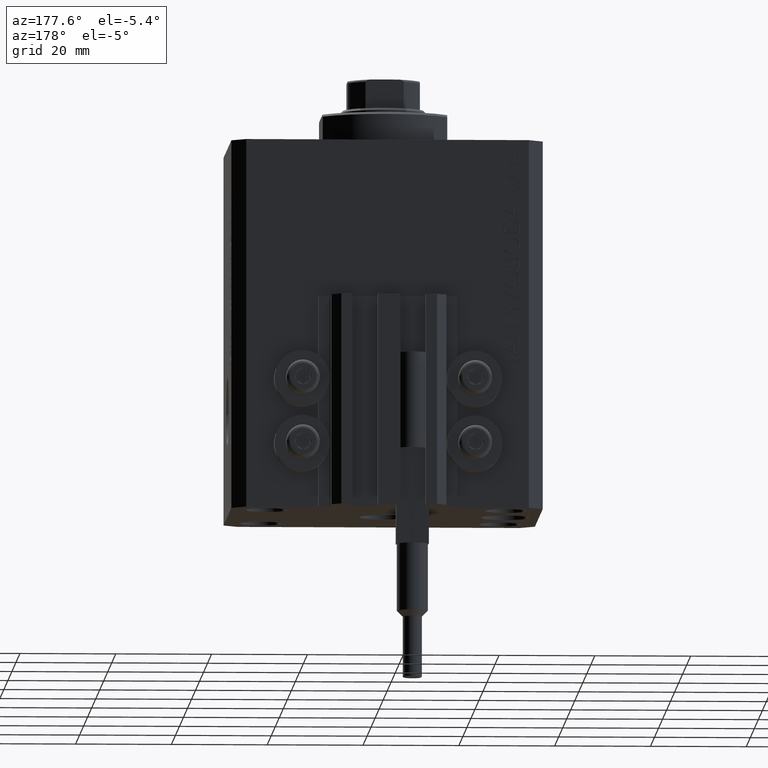
[diagram: clean part render]
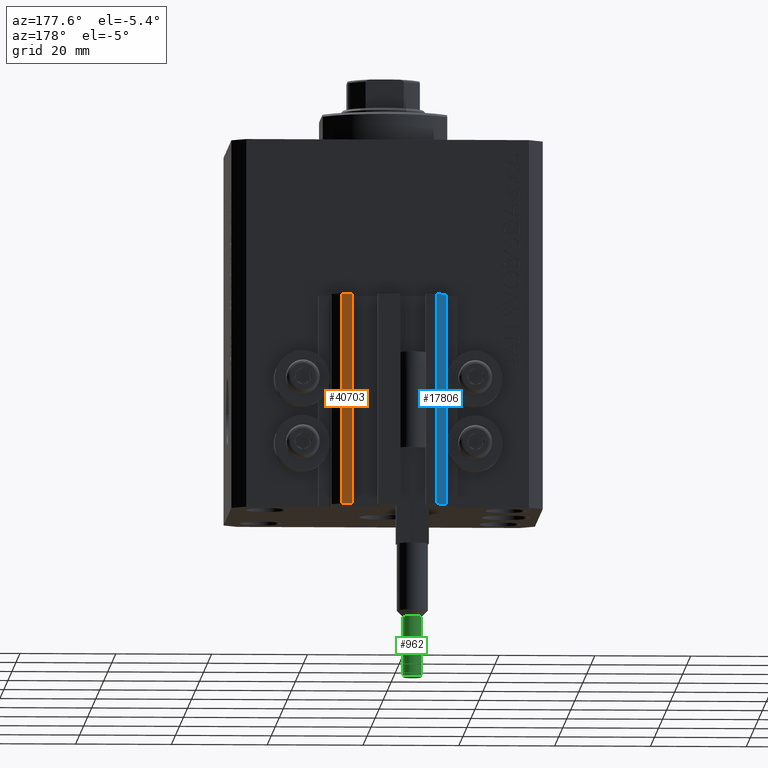
[diagram: same view with three faces highlighted in distinct colors, each labeled with its STEP entity id]
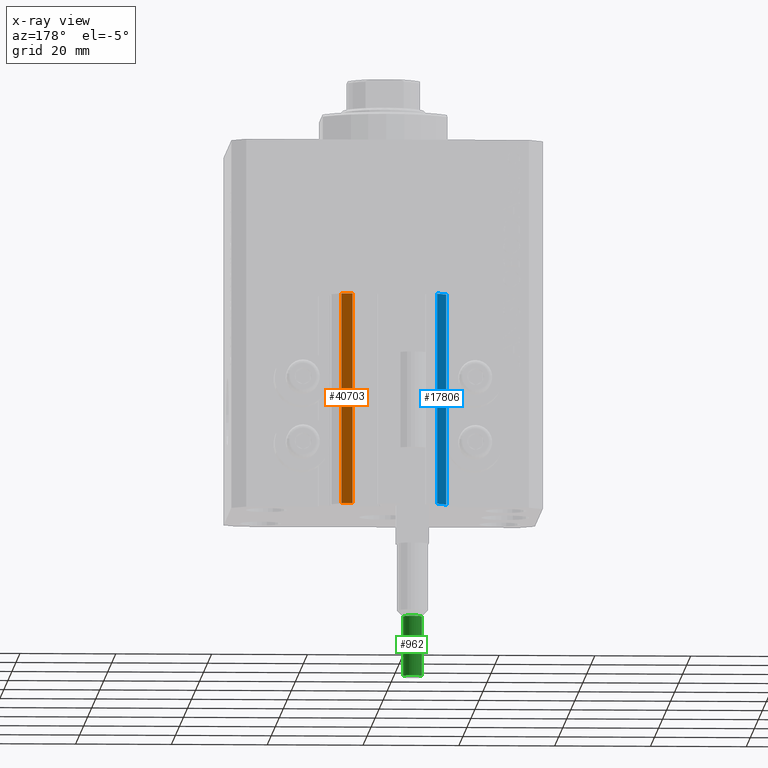
[diagram: x-ray of the same camera — body ghosted, the three highlighted faces saturated]
A machine part, auxiliary view with three faces highlighted in distinct colors.
The next image is the same camera in x-ray (body ghosted, the three faces saturated) — at least one of them is partly hidden behind the body in this view.
Their STEP definitions:

[orange] entity #40703 — the highlighted planar face has unit normal (-0, 1, 0).
#2512 = CARTESIAN_POINT ( 'NONE',  ( 9.999999999999994671, 30.49999999999949551, -77.00000000000000000 ) ) ;
#3253 = LINE ( 'NONE', #7649, #24905 ) ;
#3503 = ORIENTED_EDGE ( 'NONE', *, *, #33031, .T. ) ;
#3863 = VERTEX_POINT ( 'NONE', #12924 ) ;
#5368 = DIRECTION ( 'NONE',  ( 0.000000000000000000, 0.000000000000000000, 1.000000000000000000 ) ) ;
#7234 = CARTESIAN_POINT ( 'NONE',  ( 9.999999999999994671, 30.49999999999949551, -33.00000000000000000 ) ) ;
#7649 = CARTESIAN_POINT ( 'NONE',  ( 9.999999999999994671, 30.49999999999949551, -77.00000000000000000 ) ) ;
#9705 = VERTEX_POINT ( 'NONE', #13878 ) ;
#12924 = CARTESIAN_POINT ( 'NONE',  ( 7.649999999999995026, 30.49999999999949196, -33.00000000000000000 ) ) ;
#13878 = CARTESIAN_POINT ( 'NONE',  ( 9.999999999999994671, 30.49999999999949551, -33.00000000000000000 ) ) ;
#16367 = EDGE_CURVE ( 'NONE', #19671, #40616, #3253, .T. ) ;
#16687 = EDGE_CURVE ( 'NONE', #19671, #9705, #17075, .T. ) ;
#17075 = LINE ( 'NONE', #43410, #19436 ) ;
#17939 = DIRECTION ( 'NONE',  ( 0.000000000000000000, 0.000000000000000000, 1.000000000000000000 ) ) ;
#18115 = EDGE_CURVE ( 'NONE', #9705, #3863, #28981, .T. ) ;
#19436 = VECTOR ( 'NONE', #5368, 1000.000000000000000 ) ;
#19671 = VERTEX_POINT ( 'NONE', #34567 ) ;
#21065 = PLANE ( 'NONE',  #35463 ) ;
#24016 = DIRECTION ( 'NONE',  ( -1.000000000000000000, -1.476360405086644852E-15, 0.000000000000000000 ) ) ;
#24905 = VECTOR ( 'NONE', #47652, 1000.000000000000000 ) ;
#25022 = CARTESIAN_POINT ( 'NONE',  ( 7.649999999999995026, 30.49999999999949196, -77.00000000000000000 ) ) ;
#25211 = VECTOR ( 'NONE', #17939, 1000.000000000000000 ) ;
#28933 = ORIENTED_EDGE ( 'NONE', *, *, #16687, .F. ) ;
#28981 = LINE ( 'NONE', #7234, #41203 ) ;
#31372 = ORIENTED_EDGE ( 'NONE', *, *, #16367, .T. ) ;
#33031 = EDGE_CURVE ( 'NONE', #40616, #3863, #33082, .T. ) ;
#33082 = LINE ( 'NONE', #25022, #25211 ) ;
#33095 = EDGE_LOOP ( 'NONE', ( #40630, #28933, #31372, #3503 ) ) ;
#34567 = CARTESIAN_POINT ( 'NONE',  ( 9.999999999999994671, 30.49999999999949551, -77.00000000000000000 ) ) ;
#35463 = AXIS2_PLACEMENT_3D ( 'NONE', #2512, #39133, #24016 ) ;
#35487 = CARTESIAN_POINT ( 'NONE',  ( 7.649999999999995026, 30.49999999999949196, -77.00000000000000000 ) ) ;
#39133 = DIRECTION ( 'NONE',  ( -1.476360405086644852E-15, 1.000000000000000000, 0.000000000000000000 ) ) ;
#40616 = VERTEX_POINT ( 'NONE', #35487 ) ;
#40630 = ORIENTED_EDGE ( 'NONE', *, *, #18115, .F. ) ;
#40703 = ADVANCED_FACE ( 'NONE', ( #42780 ), #21065, .T. ) ;
#41203 = VECTOR ( 'NONE', #43837, 1000.000000000000000 ) ;
#42780 = FACE_OUTER_BOUND ( 'NONE', #33095, .T. ) ;
#43410 = CARTESIAN_POINT ( 'NONE',  ( 9.999999999999994671, 30.49999999999949551, -77.00000000000000000 ) ) ;
#43837 = DIRECTION ( 'NONE',  ( -1.000000000000000000, -1.476360405086644852E-15, 0.000000000000000000 ) ) ;
#47652 = DIRECTION ( 'NONE',  ( -1.000000000000000000, -1.476360405086644852E-15, 0.000000000000000000 ) ) ;

[blue] entity #17806 — the highlighted planar face has unit normal (-0.7071, 0.7071, 0).
#362 = CARTESIAN_POINT ( 'NONE',  ( -10.00000000000000000, 30.49999999999948841, -77.00000000000000000 ) ) ;
#513 = VERTEX_POINT ( 'NONE', #37787 ) ;
#1890 = VERTEX_POINT ( 'NONE', #14334 ) ;
#2802 = VERTEX_POINT ( 'NONE', #35378 ) ;
#5850 = PLANE ( 'NONE',  #46615 ) ;
#6220 = EDGE_CURVE ( 'NONE', #2802, #513, #29241, .T. ) ;
#8679 = DIRECTION ( 'NONE',  ( -0.7071067811865472397, -0.7071067811865479058, 0.000000000000000000 ) ) ;
#9941 = ORIENTED_EDGE ( 'NONE', *, *, #6220, .T. ) ;
#11734 = LINE ( 'NONE', #37138, #33039 ) ;
#14334 = CARTESIAN_POINT ( 'NONE',  ( -10.00000000000000000, 30.49999999999948841, -77.00000000000000000 ) ) ;
#16147 = EDGE_LOOP ( 'NONE', ( #43252, #29464, #39783, #9941 ) ) ;
#17756 = CARTESIAN_POINT ( 'NONE',  ( -12.00000000000000000, 28.49999999999948841, -77.00000000000000000 ) ) ;
#17806 = ADVANCED_FACE ( 'NONE', ( #31503 ), #5850, .T. ) ;
#20853 = CARTESIAN_POINT ( 'NONE',  ( -10.00000000000000000, 30.49999999999948841, -33.00000000000000000 ) ) ;
#22089 = EDGE_CURVE ( 'NONE', #1890, #2802, #11734, .T. ) ;
#23037 = VERTEX_POINT ( 'NONE', #36604 ) ;
#24646 = DIRECTION ( 'NONE',  ( -0.7071067811865472397, -0.7071067811865479058, 0.000000000000000000 ) ) ;
#27441 = VECTOR ( 'NONE', #47685, 1000.000000000000000 ) ;
#27720 = VECTOR ( 'NONE', #8679, 999.9999999999998863 ) ;
#29241 = LINE ( 'NONE', #17756, #45622 ) ;
#29464 = ORIENTED_EDGE ( 'NONE', *, *, #29805, .F. ) ;
#29805 = EDGE_CURVE ( 'NONE', #1890, #23037, #32836, .T. ) ;
#30319 = DIRECTION ( 'NONE',  ( -0.7071067811865472397, -0.7071067811865479058, 0.000000000000000000 ) ) ;
#31503 = FACE_OUTER_BOUND ( 'NONE', #16147, .T. ) ;
#32836 = LINE ( 'NONE', #362, #27441 ) ;
#33039 = VECTOR ( 'NONE', #30319, 999.9999999999998863 ) ;
#33134 = DIRECTION ( 'NONE',  ( 0.000000000000000000, 0.000000000000000000, 1.000000000000000000 ) ) ;
#35378 = CARTESIAN_POINT ( 'NONE',  ( -12.00000000000000000, 28.49999999999948841, -77.00000000000000000 ) ) ;
#36604 = CARTESIAN_POINT ( 'NONE',  ( -10.00000000000000000, 30.49999999999948841, -33.00000000000000000 ) ) ;
#37138 = CARTESIAN_POINT ( 'NONE',  ( -10.00000000000000000, 30.49999999999948841, -77.00000000000000000 ) ) ;
#37787 = CARTESIAN_POINT ( 'NONE',  ( -12.00000000000000000, 28.49999999999948841, -33.00000000000000000 ) ) ;
#38218 = LINE ( 'NONE', #20853, #27720 ) ;
#39783 = ORIENTED_EDGE ( 'NONE', *, *, #22089, .T. ) ;
#42483 = EDGE_CURVE ( 'NONE', #23037, #513, #38218, .T. ) ;
#43173 = DIRECTION ( 'NONE',  ( -0.7071067811865479058, 0.7071067811865472397, 0.000000000000000000 ) ) ;
#43252 = ORIENTED_EDGE ( 'NONE', *, *, #42483, .F. ) ;
#45622 = VECTOR ( 'NONE', #33134, 1000.000000000000000 ) ;
#46615 = AXIS2_PLACEMENT_3D ( 'NONE', #46835, #43173, #24646 ) ;
#46835 = CARTESIAN_POINT ( 'NONE',  ( -10.00000000000000000, 30.49999999999948841, -77.00000000000000000 ) ) ;
#47685 = DIRECTION ( 'NONE',  ( 0.000000000000000000, 0.000000000000000000, 1.000000000000000000 ) ) ;

[green] entity #962 — the highlighted cylindrical surface (edge-blend (fillet) strip) has radius 2 mm, axis along (-0, -0, 1).
#962 = ADVANCED_FACE ( 'NONE', ( #30660 ), #45499, .T. ) ;
#1447 = DIRECTION ( 'NONE',  ( -0.000000000000000000, -0.000000000000000000, 1.000000000000000000 ) ) ;
#4958 = ORIENTED_EDGE ( 'NONE', *, *, #30671, .T. ) ;
#5577 = DIRECTION ( 'NONE',  ( -1.000000000000000000, 0.000000000000000000, 0.000000000000000000 ) ) ;
#5582 = VERTEX_POINT ( 'NONE', #14691 ) ;
#6418 = AXIS2_PLACEMENT_3D ( 'NONE', #24367, #1447, #5577 ) ;
#6467 = CARTESIAN_POINT ( 'NONE',  ( 0.000000000000000000, 0.000000000000000000, 67.70000000000001705 ) ) ;
#6503 = LINE ( 'NONE', #32397, #36940 ) ;
#7255 = AXIS2_PLACEMENT_3D ( 'NONE', #6467, #21116, #29186 ) ;
#8437 = CARTESIAN_POINT ( 'NONE',  ( 0.000000000000000000, 0.000000000000000000, 68.00000000000000000 ) ) ;
#11159 = CIRCLE ( 'NONE', #7255, 2.000000000000000000 ) ;
#12074 = CARTESIAN_POINT ( 'NONE',  ( -2.000000000000000000, 0.000000000000000000, 68.00000000000000000 ) ) ;
#13772 = CARTESIAN_POINT ( 'NONE',  ( -2.000000000000000000, 0.000000000000000000, 55.24999999999997158 ) ) ;
#14691 = CARTESIAN_POINT ( 'NONE',  ( 2.000000000000000000, 2.449293598294706414E-16, 67.70000000000001705 ) ) ;
#16070 = VERTEX_POINT ( 'NONE', #45992 ) ;
#19658 = EDGE_LOOP ( 'NONE', ( #38470, #22092, #41124, #4958 ) ) ;
#19842 = VERTEX_POINT ( 'NONE', #13772 ) ;
#21116 = DIRECTION ( 'NONE',  ( -0.000000000000000000, -0.000000000000000000, -1.000000000000000000 ) ) ;
#22092 = ORIENTED_EDGE ( 'NONE', *, *, #33094, .T. ) ;
#22179 = LINE ( 'NONE', #12074, #31264 ) ;
#22562 = EDGE_CURVE ( 'NONE', #5582, #16070, #6503, .T. ) ;
#23326 = DIRECTION ( 'NONE',  ( -0.000000000000000000, -0.000000000000000000, -1.000000000000000000 ) ) ;
#23736 = AXIS2_PLACEMENT_3D ( 'NONE', #8437, #23326, #47658 ) ;
#24367 = CARTESIAN_POINT ( 'NONE',  ( 0.000000000000000000, 0.000000000000000000, 55.24999999999997158 ) ) ;
#25336 = CARTESIAN_POINT ( 'NONE',  ( -2.000000000000000000, 0.000000000000000000, 67.70000000000001705 ) ) ;
#26306 = EDGE_CURVE ( 'NONE', #43369, #19842, #22179, .T. ) ;
#27484 = CIRCLE ( 'NONE', #6418, 2.000000000000000000 ) ;
#29186 = DIRECTION ( 'NONE',  ( 1.000000000000000000, 0.000000000000000000, 0.000000000000000000 ) ) ;
#30660 = FACE_OUTER_BOUND ( 'NONE', #19658, .T. ) ;
#30671 = EDGE_CURVE ( 'NONE', #19842, #16070, #27484, .T. ) ;
#31264 = VECTOR ( 'NONE', #44121, 1000.000000000000000 ) ;
#32397 = CARTESIAN_POINT ( 'NONE',  ( 2.000000000000000000, 2.449293598294706414E-16, 68.00000000000000000 ) ) ;
#33094 = EDGE_CURVE ( 'NONE', #5582, #43369, #11159, .T. ) ;
#35812 = DIRECTION ( 'NONE',  ( -0.000000000000000000, -0.000000000000000000, -1.000000000000000000 ) ) ;
#36940 = VECTOR ( 'NONE', #35812, 1000.000000000000000 ) ;
#38470 = ORIENTED_EDGE ( 'NONE', *, *, #22562, .F. ) ;
#41124 = ORIENTED_EDGE ( 'NONE', *, *, #26306, .T. ) ;
#43369 = VERTEX_POINT ( 'NONE', #25336 ) ;
#44121 = DIRECTION ( 'NONE',  ( -0.000000000000000000, -0.000000000000000000, -1.000000000000000000 ) ) ;
#45499 = CYLINDRICAL_SURFACE ( 'NONE', #23736, 2.000000000000000000 ) ;
#45992 = CARTESIAN_POINT ( 'NONE',  ( 2.000000000000000000, 2.449293598294706414E-16, 55.24999999999997158 ) ) ;
#47658 = DIRECTION ( 'NONE',  ( -1.000000000000000000, 0.000000000000000000, 0.000000000000000000 ) ) ;